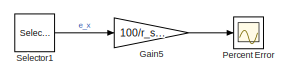
[diagram: root canvas - part 1/3, top right region]
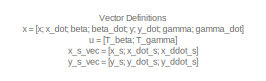
[diagram: root canvas - part 2/3, middle left region]
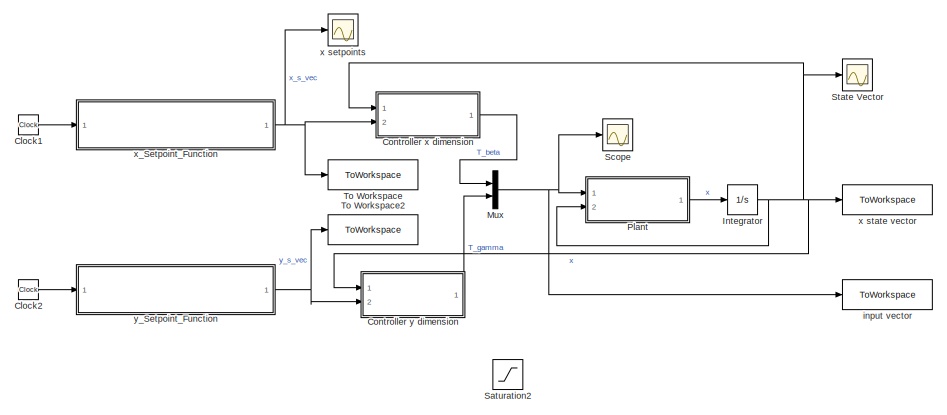
[diagram: root canvas - part 3/3, bottom left region]
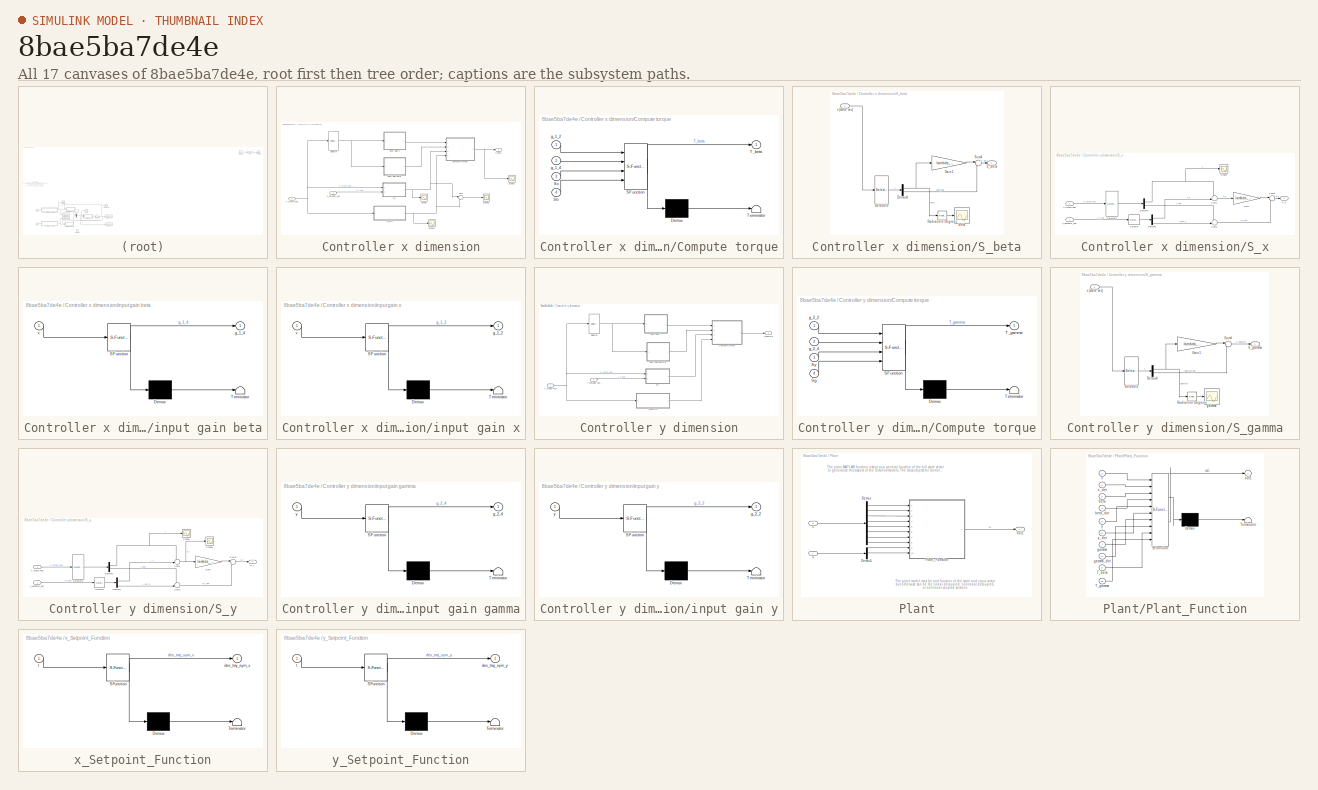
[diagram: thumbnail index - all 17 canvases of the model, root first then tree order]
MODEL slx_8bae5ba7de4e
KIND model
CONFIG AbsTol = auto
CONFIG EnableMultiTasking = off
CONFIG FixedStep = auto
CONFIG MaxStep = auto
CONFIG MinStep = auto
CONFIG RelTol = 1e-9
CONFIG SampleTimeConstraint = Unconstrained
CONFIG SolverName = VariableStepAuto
CONFIG StartTime = 0.0
CONFIG StopTime = t_sim
BLOCK [Clock] Clock1
BLOCK [Clock] Clock2
BLOCK [SubSystem] Controller x dimension
  Ports = [2, 1]
  RequestExecContextInheritance = off
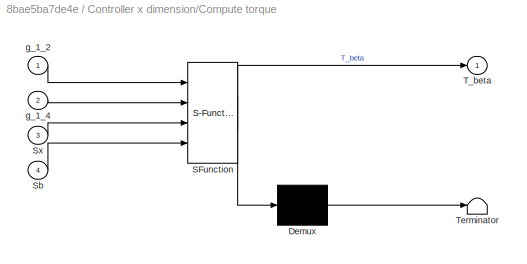
BLOCK [SubSystem] Controller x dimension/Compute torque
  ErrorFcn = Stateflow.Translate.translate
  PermitHierarchicalResolution = ExplicitOnly
  Ports = [4, 1]
  RequestExecContextInheritance = off
  SFBlockType = MATLAB Function
  TreatAsAtomicUnit = on
BLOCK [Demux] Controller x dimension/Compute torque/ Demux 
  Outputs = 1
  Ports = [1, 1]
BLOCK [S-Function] Controller x dimension/Compute torque/ SFunction 
  EnableBusSupport = on
  FunctionName = sf_sfun
  Parameters = Tmax
  PortCounts = [4 2]
  Ports = [4, 2]
  SFcnIsStateOwnerBlock = off
  SFunctionDeploymentMode = off
  Tag = Stateflow S-Function 7
BLOCK [Terminator] Controller x dimension/Compute torque/ Terminator 
BLOCK [Inport] Controller x dimension/Compute torque/Sb
  Port = 4
BLOCK [Inport] Controller x dimension/Compute torque/Sx
  Port = 3
BLOCK [Outport] Controller x dimension/Compute torque/T_beta
BLOCK [Inport] Controller x dimension/Compute torque/g_1_2
BLOCK [Inport] Controller x dimension/Compute torque/g_1_4
  Port = 2
BLOCK [SubSystem] Controller x dimension/S_beta
  Ports = [1, 1]
  RequestExecContextInheritance = off
BLOCK [Demux] Controller x dimension/S_beta/Demux4
  Outputs = 2
  Ports = [1, 2]
BLOCK [Gain] Controller x dimension/S_beta/Gain1
  Gain = lambda_beta_num
BLOCK [Reference] Controller x dimension/S_beta/Radians to Degrees  REF=simulink_extras/Transformations/Radians
to Degrees
  Ports = [1, 1]
  SourceBlock = simulink_extras/Transformations/Radians\nto Degrees
  SourceProductBaseCode = SL
  SourceType = RadiansToDegrees
BLOCK [Outport] Controller x dimension/S_beta/S_beta
BLOCK [Selector] Controller x dimension/S_beta/Selector3
  IndexOptions = Index vector (dialog)
  Indices = [3 4]
  InputPortWidth = 8
  OutputSizes = 1
  Ports = [1, 1]
BLOCK [Sum] Controller x dimension/S_beta/Sum4
  Inputs = |++
  Ports = [2, 1]
BLOCK [Scope] Controller x dimension/S_beta/beta
  Floating = off
  NumInputPorts = 1
  Ports = [1]
  ScopeSpecificationString = Simulink.scopes.TimeScopeBlockCfg('CurrentConfiguration', extmgr.ConfigurationSet(extmgr.Configuration('Core','General UI',true),extmgr.Configuration('Core','Source UI',true),extmgr.Configuration('Sources','WiredSimulink',true,'DataLoggingVariableName','ScopeData7'),extmgr.Configuration('Visuals','Time Domain',true,'SerializedDisplays',{struct('MinYLimReal','-0.33678','MaxYLimReal','0.37467','YLab...<+1476ch>
BLOCK [Inport] Controller x dimension/S_beta/x (state vec)
BLOCK [SubSystem] Controller x dimension/S_x
  Ports = [2, 1]
  RequestExecContextInheritance = off
BLOCK [Demux] Controller x dimension/S_x/Demux2
  Outputs = 2
  Ports = [1, 2]
BLOCK [Demux] Controller x dimension/S_x/Demux3
  Outputs = 2
  Ports = [1, 2]
BLOCK [Gain] Controller x dimension/S_x/Gain
  Gain = lambda_x_num
BLOCK [Outport] Controller x dimension/S_x/S_x
BLOCK [Scope] Controller x dimension/S_x/Scope
  Floating = off
  NumInputPorts = 1
  Ports = [1]
  ScopeSpecificationString = Simulink.scopes.TimeScopeBlockCfg('CurrentConfiguration', extmgr.ConfigurationSet(extmgr.Configuration('Core','General UI',true),extmgr.Configuration('Core','Source UI',true),extmgr.Configuration('Sources','WiredSimulink',true,'DataLoggingVariableName','ScopeData1'),extmgr.Configuration('Visuals','Time Domain',true,'SerializedDisplays',{struct('MinYLimReal','-0.00013','MaxYLimReal','0.00013','YLab...<+1414ch>
BLOCK [Selector] Controller x dimension/S_x/Selector
  IndexOptions = Index vector (dialog)
  Indices = [1 2]
  InputPortWidth = 3
  OutputSizes = 1
  Ports = [1, 1]
BLOCK [Selector] Controller x dimension/S_x/Selector2
  IndexOptions = Index vector (dialog)
  Indices = [1 2]
  InputPortWidth = 8
  OutputSizes = 1
  Ports = [1, 1]
BLOCK [Sum] Controller x dimension/S_x/Sum1
  Inputs = -+|
  Ports = [2, 1]
BLOCK [Sum] Controller x dimension/S_x/Sum2
  Inputs = -+|
  Ports = [2, 1]
BLOCK [Sum] Controller x dimension/S_x/Sum3
  Inputs = |++
  Ports = [2, 1]
BLOCK [Inport] Controller x dimension/S_x/x (state vec)
BLOCK [Inport] Controller x dimension/S_x/x_setpoint_vec
  Port = 2
BLOCK [Scope] Controller x dimension/Scope
  Floating = off
  NumInputPorts = 1
  Ports = [1]
  ScopeSpecificationString = Simulink.scopes.TimeScopeBlockCfg('CurrentConfiguration', extmgr.ConfigurationSet(extmgr.Configuration('Core','General UI',true),extmgr.Configuration('Core','Source UI',true),extmgr.Configuration('Sources','WiredSimulink',true,'DataLoggingVariableName','ScopeData2'),extmgr.Configuration('Visuals','Time Domain',true,'SerializedDisplays',{struct('MinYLimReal','-3.83677','MaxYLimReal','3.46329','YLab...<+1417ch>
BLOCK [Scope] Controller x dimension/Scope1
  Floating = off
  NumInputPorts = 1
  Ports = [1]
  ScopeSpecificationString = Simulink.scopes.TimeScopeBlockCfg('CurrentConfiguration', extmgr.ConfigurationSet(extmgr.Configuration('Core','General UI',true),extmgr.Configuration('Core','Source UI',true),extmgr.Configuration('Sources','WiredSimulink',true,'DataLoggingVariableName','ScopeData3'),extmgr.Configuration('Visuals','Time Domain',true,'SerializedDisplays',{struct('MinYLimReal','-0.45269','MaxYLimReal','0.46995','YLab...<+1438ch>
BLOCK [Scope] Controller x dimension/Scope2
  Floating = off
  NumInputPorts = 1
  Ports = [1]
  ScopeSpecificationString = Simulink.scopes.TimeScopeBlockCfg('CurrentConfiguration', extmgr.ConfigurationSet(extmgr.Configuration('Core','General UI',true),extmgr.Configuration('Core','Source UI',true),extmgr.Configuration('Sources','WiredSimulink',true,'DataLoggingVariableName','ScopeData1'),extmgr.Configuration('Visuals','Time Domain',true,'SerializedDisplays',{struct('MinYLimReal','-84.78484','MaxYLimReal','87.85861','YL...<+1452ch>
BLOCK [Scope] Controller x dimension/Scope3
  Commented = on
  Floating = off
  NumInputPorts = 1
  Ports = [1]
  ScopeSpecificationString = Simulink.scopes.TimeScopeBlockCfg('CurrentConfiguration', extmgr.ConfigurationSet(extmgr.Configuration('Core','General UI',true),extmgr.Configuration('Core','Source UI',true),extmgr.Configuration('Sources','WiredSimulink',true,'DataLoggingVariableName','ScopeData2'),extmgr.Configuration('Visuals','Time Domain',true,'SerializedDisplays',{struct('MinYLimReal','-60.92817','MaxYLimReal','6.79918','YLa...<+1439ch>
BLOCK [Selector] Controller x dimension/Selector
  IndexOptions = Index vector (dialog)
  Indices = [1]
  InputPortWidth = 8
  OutputSizes = 1
  Ports = [1, 1]
BLOCK [Sum] Controller x dimension/Sum
  Commented = on
  Inputs = |++
  Ports = [2, 1]
BLOCK [Outport] Controller x dimension/T_beta
BLOCK [SubSystem] Controller x dimension/input gain beta
  ErrorFcn = Stateflow.Translate.translate
  PermitHierarchicalResolution = ExplicitOnly
  Ports = [1, 1]
  RequestExecContextInheritance = off
  SFBlockType = MATLAB Function
  TreatAsAtomicUnit = on
BLOCK [Demux] Controller x dimension/input gain beta/ Demux 
  Outputs = 1
  Ports = [1, 1]
BLOCK [S-Function] Controller x dimension/input gain beta/ SFunction 
  EnableBusSupport = on
  FunctionName = sf_sfun
  PortCounts = [1 2]
  Ports = [1, 2]
  SFcnIsStateOwnerBlock = off
  SFunctionDeploymentMode = off
  Tag = Stateflow S-Function 6
BLOCK [Terminator] Controller x dimension/input gain beta/ Terminator 
BLOCK [Outport] Controller x dimension/input gain beta/g_1_4
BLOCK [Inport] Controller x dimension/input gain beta/x
BLOCK [SubSystem] Controller x dimension/input gain x
  ErrorFcn = Stateflow.Translate.translate
  PermitHierarchicalResolution = ExplicitOnly
  Ports = [1, 1]
  RequestExecContextInheritance = off
  SFBlockType = MATLAB Function
  TreatAsAtomicUnit = on
BLOCK [Demux] Controller x dimension/input gain x/ Demux 
  Outputs = 1
  Ports = [1, 1]
BLOCK [S-Function] Controller x dimension/input gain x/ SFunction 
  EnableBusSupport = on
  FunctionName = sf_sfun
  PortCounts = [1 2]
  Ports = [1, 2]
  SFcnIsStateOwnerBlock = off
  SFunctionDeploymentMode = off
  Tag = Stateflow S-Function 5
BLOCK [Terminator] Controller x dimension/input gain x/ Terminator 
BLOCK [Outport] Controller x dimension/input gain x/g_1_2
BLOCK [Inport] Controller x dimension/input gain x/x
BLOCK [Inport] Controller x dimension/x (state vec)
BLOCK [Inport] Controller x dimension/x_setpoint_vec
  Port = 2
BLOCK [SubSystem] Controller y dimension
  NameLocation = top
  Ports = [2, 1]
  RequestExecContextInheritance = off
BLOCK [SubSystem] Controller y dimension/Compute torque
  ErrorFcn = Stateflow.Translate.translate
  PermitHierarchicalResolution = ExplicitOnly
  Ports = [4, 1]
  RequestExecContextInheritance = off
  SFBlockType = MATLAB Function
  TreatAsAtomicUnit = on
BLOCK [Demux] Controller y dimension/Compute torque/ Demux 
  Outputs = 1
  Ports = [1, 1]
BLOCK [S-Function] Controller y dimension/Compute torque/ SFunction 
  EnableBusSupport = on
  FunctionName = sf_sfun
  Parameters = Tmax
  PortCounts = [4 2]
  Ports = [4, 2]
  SFcnIsStateOwnerBlock = off
  SFunctionDeploymentMode = off
  Tag = Stateflow S-Function 4
BLOCK [Terminator] Controller y dimension/Compute torque/ Terminator 
BLOCK [Inport] Controller y dimension/Compute torque/Sg
  Port = 4
BLOCK [Inport] Controller y dimension/Compute torque/Sy
  Port = 3
BLOCK [Outport] Controller y dimension/Compute torque/T_gamma
BLOCK [Inport] Controller y dimension/Compute torque/g_2_2
BLOCK [Inport] Controller y dimension/Compute torque/g_2_4
  Port = 2
BLOCK [SubSystem] Controller y dimension/S_gamma
  Ports = [1, 1]
  RequestExecContextInheritance = off
BLOCK [Demux] Controller y dimension/S_gamma/Demux4
  Outputs = 2
  Ports = [1, 2]
BLOCK [Gain] Controller y dimension/S_gamma/Gain1
  Gain = lambda_gamma_num
BLOCK [Reference] Controller y dimension/S_gamma/Radians to Degrees  REF=simulink_extras/Transformations/Radians
to Degrees
  Ports = [1, 1]
  SourceBlock = simulink_extras/Transformations/Radians\nto Degrees
  SourceProductBaseCode = SL
  SourceType = RadiansToDegrees
BLOCK [Outport] Controller y dimension/S_gamma/S_gamma
BLOCK [Selector] Controller y dimension/S_gamma/Selector3
  IndexOptions = Index vector (dialog)
  Indices = [7 8]
  InputPortWidth = 8
  OutputSizes = 1
  Ports = [1, 1]
BLOCK [Sum] Controller y dimension/S_gamma/Sum4
  Inputs = |++
  Ports = [2, 1]
BLOCK [Scope] Controller y dimension/S_gamma/gamma
  Floating = off
  NumInputPorts = 1
  Ports = [1]
  ScopeSpecificationString = Simulink.scopes.TimeScopeBlockCfg('CurrentConfiguration', extmgr.ConfigurationSet(extmgr.Configuration('Core','General UI',true),extmgr.Configuration('Core','Source UI',true),extmgr.Configuration('Sources','WiredSimulink',true,'DataLoggingVariableName','ScopeData7'),extmgr.Configuration('Visuals','Time Domain',true,'SerializedDisplays',{struct('MinYLimReal','-0.56718','MaxYLimReal','0.71847','YLab...<+1450ch>
BLOCK [Inport] Controller y dimension/S_gamma/x (state vec)
BLOCK [SubSystem] Controller y dimension/S_y
  Ports = [2, 1]
  RequestExecContextInheritance = off
BLOCK [Demux] Controller y dimension/S_y/Demux2
  Outputs = 2
  Ports = [1, 2]
BLOCK [Demux] Controller y dimension/S_y/Demux3
  Outputs = 2
  Ports = [1, 2]
BLOCK [Gain] Controller y dimension/S_y/Gain
  Gain = lambda_y_num
BLOCK [Outport] Controller y dimension/S_y/S_y
BLOCK [Scope] Controller y dimension/S_y/Scope
  Floating = off
  NumInputPorts = 1
  Ports = [1]
  ScopeSpecificationString = Simulink.scopes.TimeScopeBlockCfg('CurrentConfiguration', extmgr.ConfigurationSet(extmgr.Configuration('Core','General UI',true),extmgr.Configuration('Core','Source UI',true),extmgr.Configuration('Sources','WiredSimulink',true,'DataLoggingVariableName','ScopeData1'),extmgr.Configuration('Visuals','Time Domain',true,'SerializedDisplays',{struct('MinYLimReal','-0.00019','MaxYLimReal','0.00021','YLab...<+1441ch>
BLOCK [Scope] Controller y dimension/S_y/Scope1
  Floating = off
  NumInputPorts = 1
  Ports = [1]
  ScopeSpecificationString = Simulink.scopes.TimeScopeBlockCfg('CurrentConfiguration', extmgr.ConfigurationSet(extmgr.Configuration('Core','General UI',true),extmgr.Configuration('Core','Source UI',true),extmgr.Configuration('Sources','WiredSimulink',true,'DataLoggingVariableName','ScopeData3'),extmgr.Configuration('Visuals','Time Domain',true,'SerializedDisplays',{struct('MinYLimReal','-0.0768','MaxYLimReal','0.07348','YLabe...<+1412ch>
BLOCK [Selector] Controller y dimension/S_y/Selector
  IndexOptions = Index vector (dialog)
  Indices = [1 2]
  InputPortWidth = 3
  OutputSizes = 1
  Ports = [1, 1]
BLOCK [Selector] Controller y dimension/S_y/Selector2
  IndexOptions = Index vector (dialog)
  Indices = [5 6]
  InputPortWidth = 8
  OutputSizes = 1
  Ports = [1, 1]
BLOCK [Sum] Controller y dimension/S_y/Sum1
  Inputs = -+|
  Ports = [2, 1]
BLOCK [Sum] Controller y dimension/S_y/Sum2
  Inputs = -+|
  Ports = [2, 1]
BLOCK [Sum] Controller y dimension/S_y/Sum3
  Inputs = |++
  Ports = [2, 1]
BLOCK [Inport] Controller y dimension/S_y/x (state vec)
BLOCK [Inport] Controller y dimension/S_y/y_setpoint_vec
  Port = 2
BLOCK [Selector] Controller y dimension/Selector
  IndexOptions = Index vector (dialog)
  Indices = [5]
  InputPortWidth = 8
  OutputSizes = 1
  Ports = [1, 1]
BLOCK [Outport] Controller y dimension/T_gamma
BLOCK [SubSystem] Controller y dimension/input gain gamma
  ErrorFcn = Stateflow.Translate.translate
  PermitHierarchicalResolution = ExplicitOnly
  Ports = [1, 1]
  RequestExecContextInheritance = off
  SFBlockType = MATLAB Function
  TreatAsAtomicUnit = on
BLOCK [Demux] Controller y dimension/input gain gamma/ Demux 
  Outputs = 1
  Ports = [1, 1]
BLOCK [S-Function] Controller y dimension/input gain gamma/ SFunction 
  EnableBusSupport = on
  FunctionName = sf_sfun
  PortCounts = [1 2]
  Ports = [1, 2]
  SFcnIsStateOwnerBlock = off
  SFunctionDeploymentMode = off
  Tag = Stateflow S-Function 8
BLOCK [Terminator] Controller y dimension/input gain gamma/ Terminator 
BLOCK [Outport] Controller y dimension/input gain gamma/g_2_4
BLOCK [Inport] Controller y dimension/input gain gamma/y
BLOCK [SubSystem] Controller y dimension/input gain y
  ErrorFcn = Stateflow.Translate.translate
  PermitHierarchicalResolution = ExplicitOnly
  Ports = [1, 1]
  RequestExecContextInheritance = off
  SFBlockType = MATLAB Function
  TreatAsAtomicUnit = on
BLOCK [Demux] Controller y dimension/input gain y/ Demux 
  Outputs = 1
  Ports = [1, 1]
BLOCK [S-Function] Controller y dimension/input gain y/ SFunction 
  EnableBusSupport = on
  FunctionName = sf_sfun
  PortCounts = [1 2]
  Ports = [1, 2]
  SFcnIsStateOwnerBlock = off
  SFunctionDeploymentMode = off
  Tag = Stateflow S-Function 9
BLOCK [Terminator] Controller y dimension/input gain y/ Terminator 
BLOCK [Outport] Controller y dimension/input gain y/g_2_2
BLOCK [Inport] Controller y dimension/input gain y/y
BLOCK [Inport] Controller y dimension/y (state vec)
BLOCK [Inport] Controller y dimension/y_setpoint_vec
  Port = 2
BLOCK [Gain] Gain5
  Commented = on
  Gain = 100/r_sim
BLOCK [Integrator] Integrator
  InitialCondition = x_0
  Ports = [1, 1]
BLOCK [Mux] Mux
  DisplayOption = bar
  Inputs = 2
  Ports = [2, 1]
BLOCK [Scope] Percent Error
  Commented = on
  Floating = off
  NumInputPorts = 1
  Ports = [1]
  ScopeSpecificationString = Simulink.scopes.TimeScopeBlockCfg('CurrentConfiguration', extmgr.ConfigurationSet(extmgr.Configuration('Core','General UI',true),extmgr.Configuration('Core','Source UI',true),extmgr.Configuration('Sources','WiredSimulink',true,'DataLoggingVariableName','ScopeData2'),extmgr.Configuration('Visuals','Time Domain',true,'SerializedDisplays',{struct('MinYLimReal','-1.29449','MaxYLimReal','1.86814','YLab...<+1556ch>
BLOCK [SubSystem] Plant
  Ports = [2, 1]
  RequestExecContextInheritance = off
BLOCK [Demux] Plant/Demux
  Outputs = 8
  Ports = [1, 8]
BLOCK [Demux] Plant/Demux1
  Outputs = 2
  Ports = [1, 2]
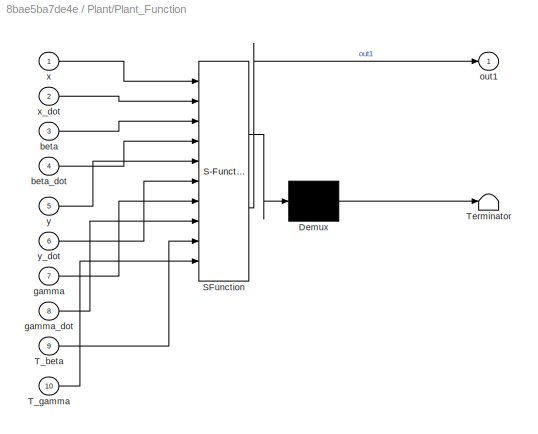
BLOCK [SubSystem] Plant/Plant_Function
  ErrorFcn = Stateflow.Translate.translate
  PermitHierarchicalResolution = ExplicitOnly
  Ports = [10, 1]
  RequestExecContextInheritance = off
  SFBlockType = MATLAB Function
  TreatAsAtomicUnit = on
BLOCK [Demux] Plant/Plant_Function/ Demux 
  Outputs = 1
  Ports = [1, 1]
BLOCK [S-Function] Plant/Plant_Function/ SFunction 
  EnableBusSupport = on
  FunctionName = sf_sfun
  PortCounts = [10 2]
  Ports = [10, 2]
  SFcnIsStateOwnerBlock = off
  SFunctionDeploymentMode = off
  Tag = Stateflow S-Function 1
BLOCK [Terminator] Plant/Plant_Function/ Terminator 
BLOCK [Inport] Plant/Plant_Function/T_beta
  Port = 9
BLOCK [Inport] Plant/Plant_Function/T_gamma
  Port = 10
BLOCK [Inport] Plant/Plant_Function/beta
  Port = 3
BLOCK [Inport] Plant/Plant_Function/beta_dot
  Port = 4
BLOCK [Inport] Plant/Plant_Function/gamma
  Port = 7
BLOCK [Inport] Plant/Plant_Function/gamma_dot
  Port = 8
BLOCK [Outport] Plant/Plant_Function/out1
BLOCK [Inport] Plant/Plant_Function/x
BLOCK [Inport] Plant/Plant_Function/x_dot
  Port = 2
BLOCK [Inport] Plant/Plant_Function/y
  Port = 5
BLOCK [Inport] Plant/Plant_Function/y_dot
  Port = 6
BLOCK [Outport] Plant/out1
BLOCK [Inport] Plant/u
BLOCK [Inport] Plant/x
  Port = 2
BLOCK [Saturate] Saturation2
  LowerLimit = -75/1000
  UpperLimit = 75/1000
  ZeroCross = off
BLOCK [Scope] Scope
  Floating = off
  NumInputPorts = 1
  Ports = [1]
  ScopeSpecificationString = Simulink.scopes.TimeScopeBlockCfg('CurrentConfiguration', extmgr.ConfigurationSet(extmgr.Configuration('Core','General UI',true),extmgr.Configuration('Core','Source UI',true),extmgr.Configuration('Sources','WiredSimulink',true,'DataLoggingVariableName','ScopeData4'),extmgr.Configuration('Visuals','Time Domain',true,'SerializedDisplays',{struct('MinYLimReal','-93.75','MaxYLimReal','93.75','YLabelRe...<+1689ch>
BLOCK [Selector] Selector1
  Commented = on
  IndexOptions = Index vector (dialog)
  Indices = [1]
  InputPortWidth = 5
  OutputSizes = 1
  Ports = [1, 1]
BLOCK [Scope] State Vector
  Floating = off
  NumInputPorts = 1
  Ports = [1]
  ScopeSpecificationString = Simulink.scopes.TimeScopeBlockCfg('CurrentConfiguration', extmgr.ConfigurationSet(extmgr.Configuration('Core','General UI',true),extmgr.Configuration('Core','Source UI',true),extmgr.Configuration('Sources','WiredSimulink',true,'DataLoggingVariableName','ScopeData3'),extmgr.Configuration('Visuals','Time Domain',true,'SerializedDisplays',{struct('MinYLimReal','-0.33422','MaxYLimReal','0.33239','YLab...<+1595ch>
BLOCK [ToWorkspace] To Workspace
  FixptAsFi = on
  MaxDataPoints = inf
  Ports = [1]
  SampleTime = -1
  VariableName = x_s_vec
BLOCK [ToWorkspace] To Workspace2
  FixptAsFi = on
  MaxDataPoints = inf
  Ports = [1]
  SampleTime = -1
  VariableName = y_s_vec
BLOCK [ToWorkspace] input vector
  FixptAsFi = on
  MaxDataPoints = inf
  Ports = [1]
  SampleTime = -1
  VariableName = u
BLOCK [Scope] x setpoints
  Floating = off
  NumInputPorts = 1
  Ports = [1]
  ScopeSpecificationString = Simulink.scopes.TimeScopeBlockCfg('CurrentConfiguration', extmgr.ConfigurationSet(extmgr.Configuration('Core','General UI',true),extmgr.Configuration('Core','Source UI',true),extmgr.Configuration('Sources','WiredSimulink',true,'DataLoggingVariableName','ScopeData5'),extmgr.Configuration('Visuals','Time Domain',true,'SerializedDisplays',{struct('MinYLimReal','-5.33745','MaxYLimReal','5.89062','YLab...<+1583ch>
BLOCK [ToWorkspace] x state vector
  FixptAsFi = on
  MaxDataPoints = inf
  Ports = [1]
  SampleTime = -1
  VariableName = x
BLOCK [SubSystem] x_Setpoint_Function
  ErrorFcn = Stateflow.Translate.translate
  PermitHierarchicalResolution = ExplicitOnly
  Ports = [1, 1]
  RequestExecContextInheritance = off
  SFBlockType = MATLAB Function
  TreatAsAtomicUnit = on
BLOCK [Demux] x_Setpoint_Function/ Demux 
  Outputs = 1
  Ports = [1, 1]
BLOCK [S-Function] x_Setpoint_Function/ SFunction 
  EnableBusSupport = on
  FunctionName = sf_sfun
  PortCounts = [1 2]
  Ports = [1, 2]
  SFcnIsStateOwnerBlock = off
  SFunctionDeploymentMode = off
  Tag = Stateflow S-Function 2
BLOCK [Terminator] x_Setpoint_Function/ Terminator 
BLOCK [Outport] x_Setpoint_Function/des_traj_sym_x
BLOCK [Inport] x_Setpoint_Function/t
BLOCK [SubSystem] y_Setpoint_Function
  ErrorFcn = Stateflow.Translate.translate
  PermitHierarchicalResolution = ExplicitOnly
  Ports = [1, 1]
  RequestExecContextInheritance = off
  SFBlockType = MATLAB Function
  TreatAsAtomicUnit = on
BLOCK [Demux] y_Setpoint_Function/ Demux 
  Outputs = 1
  Ports = [1, 1]
BLOCK [S-Function] y_Setpoint_Function/ SFunction 
  EnableBusSupport = on
  FunctionName = sf_sfun
  PortCounts = [1 2]
  Ports = [1, 2]
  SFcnIsStateOwnerBlock = off
  SFunctionDeploymentMode = off
  Tag = Stateflow S-Function 3
BLOCK [Terminator] y_Setpoint_Function/ Terminator 
BLOCK [Outport] y_Setpoint_Function/des_traj_sym_y
BLOCK [Inport] y_Setpoint_Function/t
ANNOTATION (root): Vector Definitions x = [x; x_dot; beta; beta_dot; y; y_dot; gamma; gamma_dot] u = [T_beta; T_gamma] x_s_vec = [x_s; x_dot_s; x_ddot_s] y_s_vec = [y_s; y_dot_s; y_ddot_s]
ANNOTATION Plant: The plant MATLAB function is kept as a general function of the full state vector to generalize this aspect of the Simulink models. The class objects for controllers must define this function in terms of all possible inputs. It is ok for certain inputs to be unused.
ANNOTATION Plant: The plant model must be and function of the state and input vector but otherwise can be the linear decoupled, nonlinear decoupled, or nonlinear coupled versions
LINE Clock1:1 -> x_Setpoint_Function:1
LINE Clock2:1 -> y_Setpoint_Function:1
NET Controller x dimension/Compute torque:1 -> Controller x dimension/Scope2:1, Controller x dimension/T_beta:1
NET Controller x dimension/S_beta/Demux4:1 -> Controller x dimension/S_beta/Gain1:1, Controller x dimension/S_beta/Radians to Degrees:1
LINE Controller x dimension/S_beta/Demux4:2 -> Controller x dimension/S_beta/Sum4:2
LINE Controller x dimension/S_beta/Gain1:1 -> Controller x dimension/S_beta/Sum4:1
LINE Controller x dimension/S_beta/Radians to Degrees:1 -> Controller x dimension/S_beta/beta:1
LINE Controller x dimension/S_beta/Selector3:1 -> Controller x dimension/S_beta/Demux4:1
LINE Controller x dimension/S_beta/Sum4:1 -> Controller x dimension/S_beta/S_beta:1
LINE Controller x dimension/S_beta/x (state vec):1 -> Controller x dimension/S_beta/Selector3:1
NET Controller x dimension/S_beta:1 -> Controller x dimension/Compute torque:4, Controller x dimension/Scope1:1, Controller x dimension/Sum:2
LINE Controller x dimension/S_x/Demux2:1 -> Controller x dimension/S_x/Sum1:2
LINE Controller x dimension/S_x/Demux2:2 -> Controller x dimension/S_x/Sum2:2
NET Controller x dimension/S_x/Demux3:1 -> Controller x dimension/S_x/Scope:1, Controller x dimension/S_x/Sum1:1
LINE Controller x dimension/S_x/Demux3:2 -> Controller x dimension/S_x/Sum2:1
LINE Controller x dimension/S_x/Gain:1 -> Controller x dimension/S_x/Sum3:1
LINE Controller x dimension/S_x/Selector2:1 -> Controller x dimension/S_x/Demux3:1
LINE Controller x dimension/S_x/Selector:1 -> Controller x dimension/S_x/Demux2:1
LINE Controller x dimension/S_x/Sum1:1 -> Controller x dimension/S_x/Gain:1
LINE Controller x dimension/S_x/Sum2:1 -> Controller x dimension/S_x/Sum3:2
LINE Controller x dimension/S_x/Sum3:1 -> Controller x dimension/S_x/S_x:1
LINE Controller x dimension/S_x/x (state vec):1 -> Controller x dimension/S_x/Selector2:1
LINE Controller x dimension/S_x/x_setpoint_vec:1 -> Controller x dimension/S_x/Selector:1
NET Controller x dimension/S_x:1 -> Controller x dimension/Compute torque:3, Controller x dimension/Scope:1, Controller x dimension/Sum:1
NET Controller x dimension/Selector:1 -> Controller x dimension/input gain beta:1, Controller x dimension/input gain x:1
LINE Controller x dimension/Sum:1 -> Controller x dimension/Scope3:1
LINE Controller x dimension/input gain beta:1 -> Controller x dimension/Compute torque:2
LINE Controller x dimension/input gain x:1 -> Controller x dimension/Compute torque:1
NET Controller x dimension/x (state vec):1 -> Controller x dimension/S_beta:1, Controller x dimension/S_x:1, Controller x dimension/Selector:1
LINE Controller x dimension/x_setpoint_vec:1 -> Controller x dimension/S_x:2
LINE Controller x dimension:1 -> Mux:1
LINE Controller y dimension/Compute torque:1 -> Controller y dimension/T_gamma:1
NET Controller y dimension/S_gamma/Demux4:1 -> Controller y dimension/S_gamma/Gain1:1, Controller y dimension/S_gamma/Radians to Degrees:1
LINE Controller y dimension/S_gamma/Demux4:2 -> Controller y dimension/S_gamma/Sum4:2
LINE Controller y dimension/S_gamma/Gain1:1 -> Controller y dimension/S_gamma/Sum4:1
LINE Controller y dimension/S_gamma/Radians to Degrees:1 -> Controller y dimension/S_gamma/gamma:1
LINE Controller y dimension/S_gamma/Selector3:1 -> Controller y dimension/S_gamma/Demux4:1
LINE Controller y dimension/S_gamma/Sum4:1 -> Controller y dimension/S_gamma/S_gamma:1
LINE Controller y dimension/S_gamma/x (state vec):1 -> Controller y dimension/S_gamma/Selector3:1
LINE Controller y dimension/S_gamma:1 -> Controller y dimension/Compute torque:4
LINE Controller y dimension/S_y/Demux2:1 -> Controller y dimension/S_y/Sum1:2
LINE Controller y dimension/S_y/Demux2:2 -> Controller y dimension/S_y/Sum2:2
NET Controller y dimension/S_y/Demux3:1 -> Controller y dimension/S_y/Scope:1, Controller y dimension/S_y/Sum1:1
LINE Controller y dimension/S_y/Demux3:2 -> Controller y dimension/S_y/Sum2:1
LINE Controller y dimension/S_y/Gain:1 -> Controller y dimension/S_y/Sum3:1
LINE Controller y dimension/S_y/Selector2:1 -> Controller y dimension/S_y/Demux3:1
LINE Controller y dimension/S_y/Selector:1 -> Controller y dimension/S_y/Demux2:1
NET Controller y dimension/S_y/Sum1:1 -> Controller y dimension/S_y/Gain:1, Controller y dimension/S_y/Scope1:1
LINE Controller y dimension/S_y/Sum2:1 -> Controller y dimension/S_y/Sum3:2
LINE Controller y dimension/S_y/Sum3:1 -> Controller y dimension/S_y/S_y:1
LINE Controller y dimension/S_y/x (state vec):1 -> Controller y dimension/S_y/Selector2:1
LINE Controller y dimension/S_y/y_setpoint_vec:1 -> Controller y dimension/S_y/Selector:1
LINE Controller y dimension/S_y:1 -> Controller y dimension/Compute torque:3
NET Controller y dimension/Selector:1 -> Controller y dimension/input gain gamma:1, Controller y dimension/input gain y:1
LINE Controller y dimension/input gain gamma:1 -> Controller y dimension/Compute torque:2
LINE Controller y dimension/input gain y:1 -> Controller y dimension/Compute torque:1
NET Controller y dimension/y (state vec):1 -> Controller y dimension/S_gamma:1, Controller y dimension/S_y:1, Controller y dimension/Selector:1
LINE Controller y dimension/y_setpoint_vec:1 -> Controller y dimension/S_y:2
LINE Controller y dimension:1 -> Mux:2
LINE Gain5:1 -> Percent Error:1
NET Integrator:1 -> Controller x dimension:1, Controller y dimension:1, Plant:2, State Vector:1, x state vector:1
NET Mux:1 -> Plant:1, Scope:1, input vector:1
LINE Plant/Demux1:1 -> Plant/Plant_Function:9
LINE Plant/Demux1:2 -> Plant/Plant_Function:10
LINE Plant/Demux:1 -> Plant/Plant_Function:1
LINE Plant/Demux:2 -> Plant/Plant_Function:2
LINE Plant/Demux:3 -> Plant/Plant_Function:3
LINE Plant/Demux:4 -> Plant/Plant_Function:4
LINE Plant/Demux:5 -> Plant/Plant_Function:5
LINE Plant/Demux:6 -> Plant/Plant_Function:6
LINE Plant/Demux:7 -> Plant/Plant_Function:7
LINE Plant/Demux:8 -> Plant/Plant_Function:8
LINE Plant/Plant_Function:1 -> Plant/out1:1
LINE Plant/u:1 -> Plant/Demux1:1
LINE Plant/x:1 -> Plant/Demux:1
LINE Plant:1 -> Integrator:1
LINE Selector1:1 -> Gain5:1
NET x_Setpoint_Function:1 -> Controller x dimension:2, To Workspace:1, x setpoints:1
NET y_Setpoint_Function:1 -> Controller y dimension:2, To Workspace2:1
note: NET lines group one-source signal fan-out (src -> all destinations, sorted); 1:1 wires keep LINE
CHART Plant/Plant_Function states=1 transitions=1
  STATE_LABEL 'eML_blk_kernel()'
  STATE_LABEL 'SCRIPT:\nfunction out1 = xdot(x,x_dot,beta,beta_dot,y,y_dot,gamma,gamma_dot,T_beta,T_gamma)\n%#codegen\n\n%    This function was generated by the Symbolic Math Toolbox version 9.0.\n%    14-Nov-2021 19:23:17\n\nt2 = cos(beta);\nt3 = cos(gamma);\nt4 = sin(beta);\nt5 = sin(gamma);\nt6 = beta_dot.^2;\nt7 = gamma_dot.^2;\nt8 = x.^2;\nt9 = y.^2;\nt10 = t8.*(2.1e+1./1.0e+2);\nt11 = t9.*(2.1e+1./1.0e+2);\nt12 = t10+1.824...<+664ch>'
CHART x_Setpoint_Function states=1 transitions=1
  STATE_LABEL 'eML_blk_kernel()'
  STATE_LABEL 'SCRIPT:\nfunction des_traj_sym_x = x_setpoint(t)\n%#codegen\n\n%    This function was generated by the Symbolic Math Toolbox version 9.0.\n%    14-Nov-2021 19:23:17\n\nt2 = t.*pi.*2.0;\nt5 = t./3.0;\nt3 = cos(t2);\nt4 = sin(t2);\nt6 = -t5;\nt7 = exp(t6);\nt8 = t7-1.0;\ndes_traj_sym_x = [t4.*t8.*(-1.0./5.0);(t4.*t7)./1.5e+1-t3.*t8.*pi.*(2.0./5.0);t4.*t7.*(-1.0./4.5e+1)+t3.*t7.*pi.*(4.0./1.5e+1)+t4.*t8.*pi.^2.*(4...<+11ch>'
CHART y_Setpoint_Function states=1 transitions=1
  STATE_LABEL 'eML_blk_kernel()'
  STATE_LABEL 'SCRIPT:\nfunction des_traj_sym_y = y_setpoint(t)\n%#codegen\n\n%    This function was generated by the Symbolic Math Toolbox version 9.0.\n%    14-Nov-2021 19:23:17\n\nt2 = t.*pi.*2.0;\nt5 = t./3.0;\nt3 = cos(t2);\nt4 = sin(t2);\nt6 = -t5;\nt7 = exp(t6);\nt8 = t3.^2;\nt9 = t4.^2;\nt10 = t7-1.0;\ndes_traj_sym_y = [t3.*t4.*t10.*(-1.0./5.0);t8.*t10.*pi.*(-2.0./5.0)+t9.*t10.*pi.*(2.0./5.0)+(t3.*t4.*t7)./1.5e+1;t7.*t8...<+103ch>'
CHART Controller y dimension/Compute torque states=1 transitions=1
  STATE_LABEL 'eML_blk_kernel()'
  STATE_LABEL 'SCRIPT:\nfunction T_gamma = fcn(g_2_2, g_2_4, Tmax, Sy, Sg)\n\nT_gamma= -Tmax*sign(Sg*g_2_4 - Sy*g_2_2);\n'
CHART Controller x dimension/input gain x states=1 transitions=1
  STATE_LABEL 'eML_blk_kernel()'
  STATE_LABEL 'SCRIPT:\nfunction g_1_2 = g_1_2(x)\n%#codegen\n\n%    This function was generated by the Symbolic Math Toolbox version 9.0.\n%    14-Nov-2021 21:57:29\n\ng_1_2 = (-3.235e-1)./(x.^2.*(2.1e+1./1.0e+2)+1.82492e-2);\n'
CHART Controller x dimension/input gain beta states=1 transitions=1
  STATE_LABEL 'eML_blk_kernel()'
  STATE_LABEL 'SCRIPT:\nfunction g_1_4 = g_1_4(x)\n%#codegen\n\n%    This function was generated by the Symbolic Math Toolbox version 9.0.\n%    14-Nov-2021 21:57:29\n\ng_1_4 = 7.0./(x.^2.*(2.1e+1./1.0e+2)+1.82492e-2);\n'
CHART Controller x dimension/Compute torque states=1 transitions=1
  STATE_LABEL 'eML_blk_kernel()'
  STATE_LABEL 'SCRIPT:\nfunction T_beta = fcn(g_1_2, g_1_4, Tmax, Sx, Sb)\n\nT_beta = -Tmax*sign(Sb*g_1_4 - Sx*g_1_2);\n\n% S = (Sb+Sx);\n% T_beta = -Tmax*sign(S*(g_1_4-g_1_2));'
CHART Controller y dimension/input gain gamma states=1 transitions=1
  STATE_LABEL 'eML_blk_kernel()'
  STATE_LABEL 'SCRIPT:\nfunction g_2_4 = g_2_4(y)\n%#codegen\n\n%    This function was generated by the Symbolic Math Toolbox version 9.0.\n%    14-Nov-2021 21:57:29\n\ng_2_4 = 7.0./(y.^2.*(2.1e+1./1.0e+2)+1.82492e-2);\n'
CHART Controller y dimension/input gain y states=1 transitions=1
  STATE_LABEL 'eML_blk_kernel()'
  STATE_LABEL 'SCRIPT:\nfunction g_2_2 = g_2_2(y)\n%#codegen\n\n%    This function was generated by the Symbolic Math Toolbox version 9.0.\n%    14-Nov-2021 21:57:29\n\ng_2_2 = 3.235e-1./(y.^2.*(2.1e+1./1.0e+2)+1.82492e-2);\n'
CHART  states=0 transitions=0
CHART  states=0 transitions=0
CHART  states=0 transitions=0
CHART  states=0 transitions=0
CHART  states=0 transitions=0
CHART  states=0 transitions=0
CHART  states=0 transitions=0
CHART  states=0 transitions=0
CHART  states=0 transitions=0
